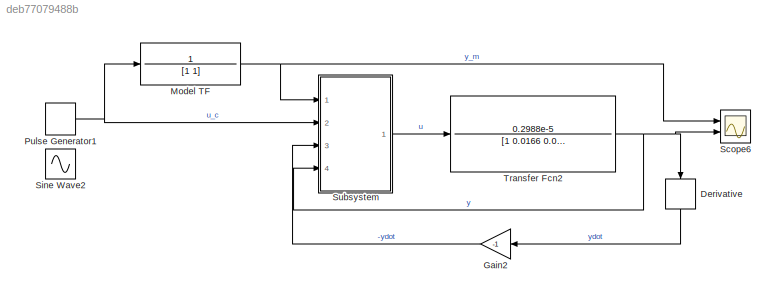
MODEL slx_deb77079488b
KIND model
CONFIG AbsTol = auto
CONFIG EnableMultiTasking = on
CONFIG FixedStep = .1
CONFIG MaxStep = auto
CONFIG MinStep = auto
CONFIG RelTol = 1e-3
CONFIG SampleTimeConstraint = Unconstrained
CONFIG Solver = ode45
CONFIG SolverName = ode45
CONFIG StartTime = 0.0
CONFIG StopTime = 500
BLOCK [Derivative] Derivative
BLOCK [Gain] Gain2
  Gain = -1
BLOCK [TransferFcn] Model TF
  Numerator = 1
BLOCK [DiscretePulseGenerator] Pulse Generator1
  Amplitude = 10
  Period = 200
  Ports = [0, 1]
  PulseType = Time based
  PulseWidth = 50
BLOCK [Scope] Scope6
  Floating = off
  NumInputPorts = 2
  Ports = [2]
  ScopeSpecificationString = Simulink.scopes.TimeScopeBlockCfg('CurrentConfiguration', extmgr.ConfigurationSet(extmgr.Configuration('Core','General UI',true),extmgr.Configuration('Core','Source UI',true),extmgr.Configuration('Sources','WiredSimulink',true,'DataLoggingVariableName','ScopeData2'),extmgr.Configuration('Visuals','Time Domain',true,'SerializedDisplays',{struct('MinYLimReal','-31.43841','MaxYLimReal','167.96198','Y...<+1429ch>
BLOCK [Sin] Sine Wave2
  Amplitude = 10
  Frequency = 0.01
  Ports = [0, 1]
  SampleTime = 0
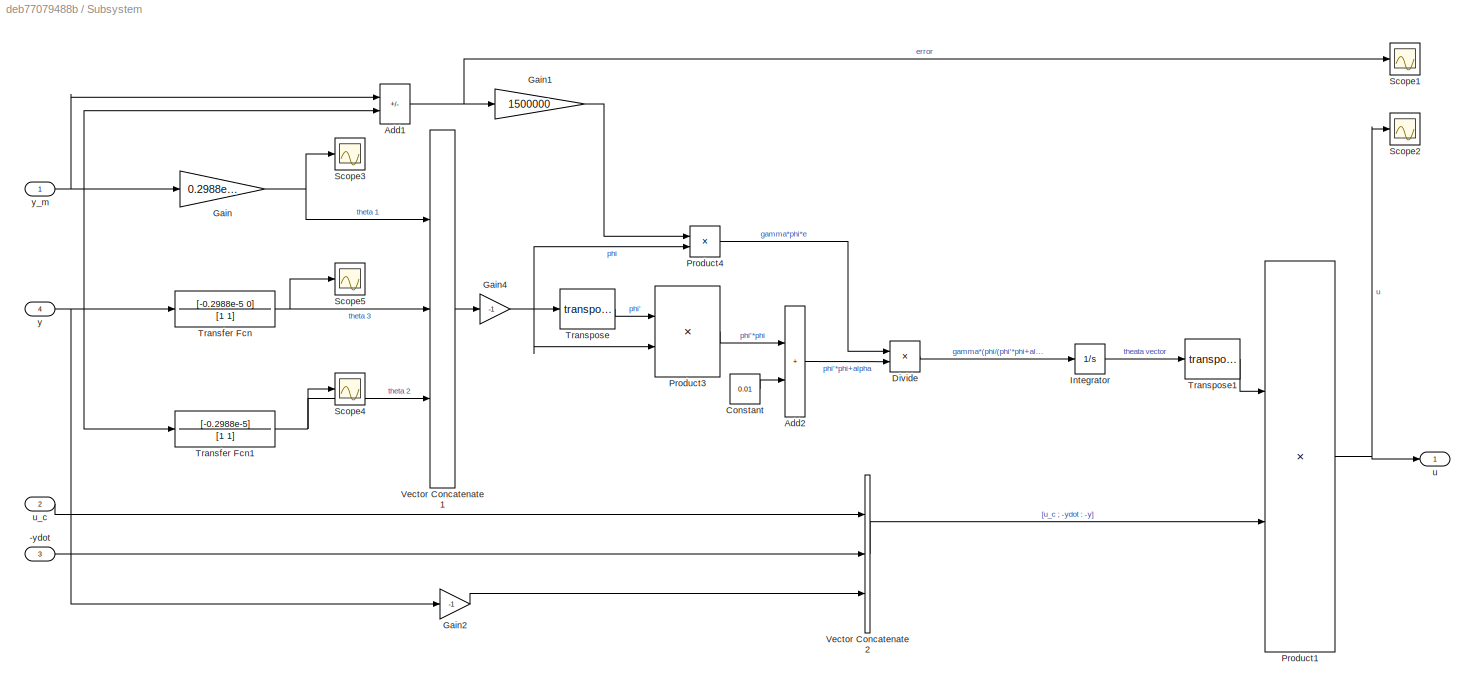
BLOCK [SubSystem] Subsystem
  Ports = [4, 1]
  RequestExecContextInheritance = off
BLOCK [Inport] Subsystem/-ydot
  Port = 3
BLOCK [Sum] Subsystem/Add1
  IconShape = rectangular
  Inputs = -+
  Ports = [2, 1]
BLOCK [Sum] Subsystem/Add2
  IconShape = rectangular
  Ports = [2, 1]
BLOCK [Constant] Subsystem/Constant
  Value = 0.01
BLOCK [Product] Subsystem/Divide
  Inputs = */
  Ports = [2, 1]
BLOCK [Gain] Subsystem/Gain
  Gain = 0.2988e-5
BLOCK [Gain] Subsystem/Gain1
  Gain = 1500000
BLOCK [Gain] Subsystem/Gain2
  Gain = -1
BLOCK [Gain] Subsystem/Gain4
  Gain = -1
BLOCK [Integrator] Subsystem/Integrator
  Ports = [1, 1]
BLOCK [Product] Subsystem/Product1
  Multiplication = Matrix(*)
  Ports = [2, 1]
BLOCK [Product] Subsystem/Product3
  Multiplication = Matrix(*)
  Ports = [2, 1]
BLOCK [Product] Subsystem/Product4
  Ports = [2, 1]
BLOCK [Scope] Subsystem/Scope1
  Floating = off
  NumInputPorts = 1
  Ports = [1]
  ScopeSpecificationString = Simulink.scopes.TimeScopeBlockCfg('CurrentConfiguration', extmgr.ConfigurationSet(extmgr.Configuration('Core','General UI',true),extmgr.Configuration('Core','Source UI',true),extmgr.Configuration('Sources','WiredSimulink',true,'DataLoggingVariableName','ScopeData1','DataLoggingSaveFormat','StructureWithTime','DataLoggingLimitDataPoints',true,'DataLoggingDecimation','1','DataLoggingDecimateData',tr...<+1725ch>
BLOCK [Scope] Subsystem/Scope2
  Floating = off
  NumInputPorts = 1
  Ports = [1]
  ScopeSpecificationString = Simulink.scopes.TimeScopeBlockCfg('CurrentConfiguration', extmgr.ConfigurationSet(extmgr.Configuration('Core','General UI',true),extmgr.Configuration('Core','Source UI',true),extmgr.Configuration('Sources','WiredSimulink',true,'DataLogging',true,'DataLoggingVariableName','ContSig','DataLoggingSaveFormat','StructureWithTime','DataLoggingDecimation','1','DataLoggingDecimateData',true),extmgr.Configu...<+938ch>
BLOCK [Scope] Subsystem/Scope3
  Floating = off
  NumInputPorts = 1
  Ports = [1]
  ScopeSpecificationString = Simulink.scopes.TimeScopeBlockCfg('CurrentConfiguration', extmgr.ConfigurationSet(extmgr.Configuration('Core','General UI',true),extmgr.Configuration('Core','Source UI',true),extmgr.Configuration('Sources','WiredSimulink',true,'DataLogging',true,'DataLoggingVariableName','f','DataLoggingSaveFormat','StructureWithTime','DataLoggingDecimation','1','DataLoggingDecimateData',true),extmgr.Configuration...<+932ch>
BLOCK [Scope] Subsystem/Scope4
  Floating = off
  NumInputPorts = 1
  Ports = [1]
  ScopeSpecificationString = Simulink.scopes.TimeScopeBlockCfg('CurrentConfiguration', extmgr.ConfigurationSet(extmgr.Configuration('Core','General UI',true),extmgr.Configuration('Core','Source UI',true),extmgr.Configuration('Sources','WiredSimulink',true,'DataLogging',true,'DataLoggingVariableName','q1','DataLoggingSaveFormat','StructureWithTime','DataLoggingDecimation','1','DataLoggingDecimateData',true),extmgr.Configuratio...<+933ch>
BLOCK [Scope] Subsystem/Scope5
  Floating = off
  NumInputPorts = 1
  Ports = [1]
  ScopeSpecificationString = Simulink.scopes.TimeScopeBlockCfg('CurrentConfiguration', extmgr.ConfigurationSet(extmgr.Configuration('Core','General UI',true),extmgr.Configuration('Core','Source UI',true),extmgr.Configuration('Sources','WiredSimulink',true,'DataLogging',true,'DataLoggingVariableName','q0','DataLoggingSaveFormat','StructureWithTime','DataLoggingDecimation','1','DataLoggingDecimateData',true),extmgr.Configuratio...<+933ch>
BLOCK [TransferFcn] Subsystem/Transfer Fcn
  Numerator = [-0.2988e-5 0]
BLOCK [TransferFcn] Subsystem/Transfer Fcn1
  Numerator = [-0.2988e-5]
BLOCK [Math] Subsystem/Transpose
  Operator = transpose
  Ports = [1, 1]
BLOCK [Math] Subsystem/Transpose1
  Operator = transpose
  Ports = [1, 1]
BLOCK [Concatenate] Subsystem/Vector Concatenate1
  NumInputs = 3
  Ports = [3, 1]
BLOCK [Concatenate] Subsystem/Vector Concatenate2
  NumInputs = 3
  Ports = [3, 1]
BLOCK [Outport] Subsystem/u
BLOCK [Inport] Subsystem/u_c
  Port = 2
BLOCK [Inport] Subsystem/y
  Port = 4
BLOCK [Inport] Subsystem/y_m
BLOCK [TransferFcn] Transfer Fcn2
  Denominator = [1 0.0166 0.00001]
  Numerator = 0.2988e-5
LINE Derivative:1 -> Gain2:1
LINE Gain2:1 -> Subsystem:3
NET Model TF:1 -> Scope6:1, Subsystem:1
NET Pulse Generator1:1 -> Model TF:1, Subsystem:2
LINE Subsystem/-ydot:1 -> Subsystem/Vector Concatenate2:2
NET Subsystem/Add1:1 -> Subsystem/Gain1:1, Subsystem/Scope1:1
LINE Subsystem/Add2:1 -> Subsystem/Divide:2
LINE Subsystem/Constant:1 -> Subsystem/Add2:2
LINE Subsystem/Divide:1 -> Subsystem/Integrator:1
LINE Subsystem/Gain1:1 -> Subsystem/Product4:1
LINE Subsystem/Gain2:1 -> Subsystem/Vector Concatenate2:3
NET Subsystem/Gain4:1 -> Subsystem/Product3:2, Subsystem/Product4:2, Subsystem/Transpose:1
NET Subsystem/Gain:1 -> Subsystem/Scope3:1, Subsystem/Vector Concatenate1:1
LINE Subsystem/Integrator:1 -> Subsystem/Transpose1:1
NET Subsystem/Product1:1 -> Subsystem/Scope2:1, Subsystem/u:1
LINE Subsystem/Product3:1 -> Subsystem/Add2:1
LINE Subsystem/Product4:1 -> Subsystem/Divide:1
NET Subsystem/Transfer Fcn1:1 -> Subsystem/Scope4:1, Subsystem/Vector Concatenate1:3
NET Subsystem/Transfer Fcn:1 -> Subsystem/Scope5:1, Subsystem/Vector Concatenate1:2
LINE Subsystem/Transpose1:1 -> Subsystem/Product1:1
LINE Subsystem/Transpose:1 -> Subsystem/Product3:1
LINE Subsystem/Vector Concatenate1:1 -> Subsystem/Gain4:1
LINE Subsystem/Vector Concatenate2:1 -> Subsystem/Product1:2
LINE Subsystem/u_c:1 -> Subsystem/Vector Concatenate2:1
NET Subsystem/y:1 -> Subsystem/Add1:2, Subsystem/Gain2:1, Subsystem/Transfer Fcn1:1, Subsystem/Transfer Fcn:1
NET Subsystem/y_m:1 -> Subsystem/Add1:1, Subsystem/Gain:1
LINE Subsystem:1 -> Transfer Fcn2:1
NET Transfer Fcn2:1 -> Derivative:1, Scope6:2, Subsystem:4
note: NET lines group one-source signal fan-out (src -> all destinations, sorted); 1:1 wires keep LINE
